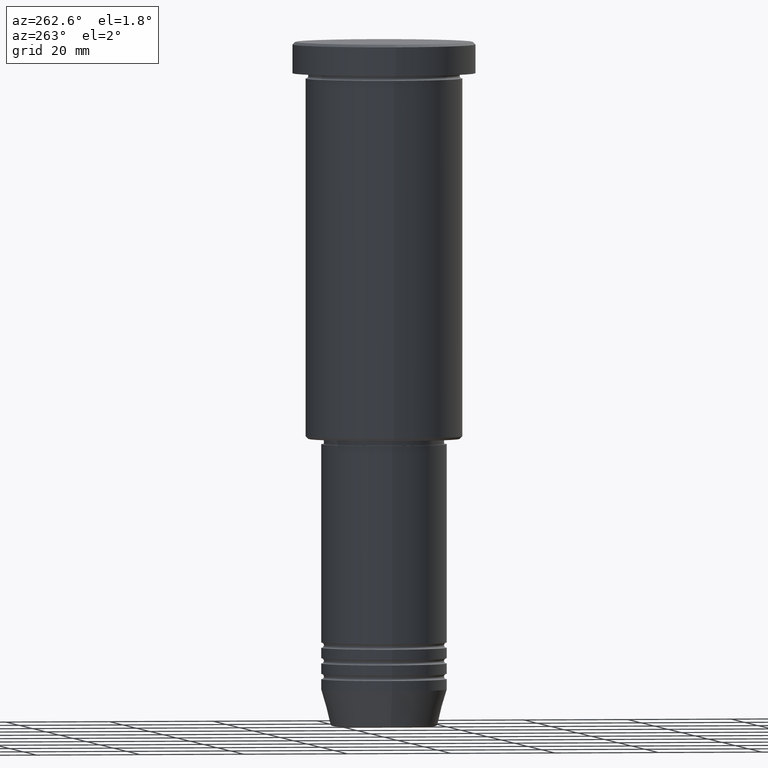
[diagram: clean part render]
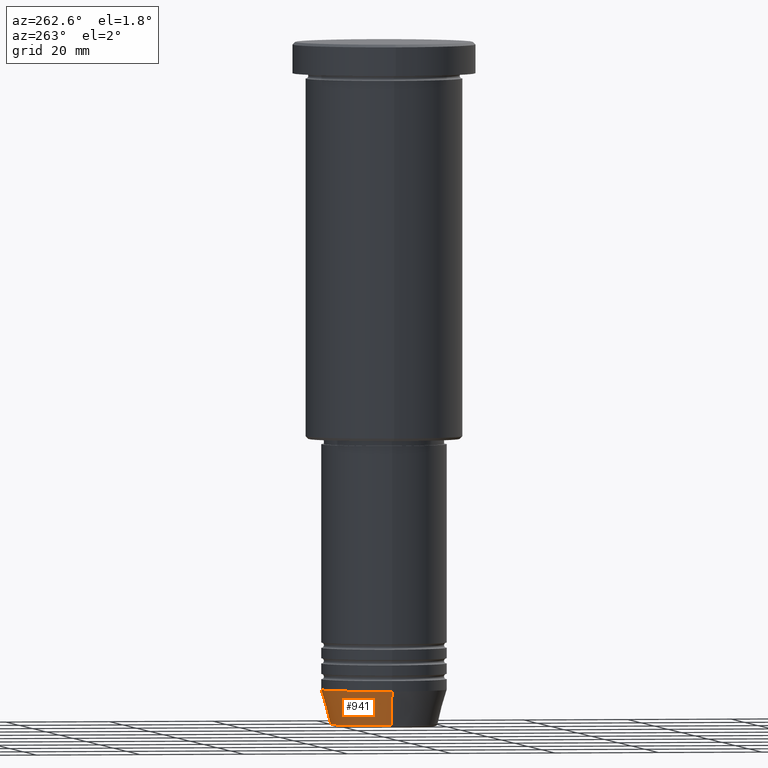
[diagram: same view with one face highlighted and labeled with its STEP entity id]
A machine part, auxiliary view. The second image highlights one B-rep face of the part: STEP entity #941.
In plain terms, the highlighted conical surface has half-angle 15 deg.
Its self-contained STEP definition (entity closure, byte-faithful):
#2 = VERTEX_POINT ( 'NONE', #554 ) ;
#3 = FACE_OUTER_BOUND ( 'NONE', #213, .T. ) ;
#49 = DIRECTION ( 'NONE',  ( -0.2588190451025213501, 3.169619151431772337E-17, 0.9659258262890680902 ) ) ;
#50 = VECTOR ( 'NONE', #189, 1000.000000000000000 ) ;
#54 = CARTESIAN_POINT ( 'NONE',  ( -12.00000000000000000, 1.469576158976823947E-15, -124.0000000000000000 ) ) ;
#63 = AXIS2_PLACEMENT_3D ( 'NONE', #1066, #457, #533 ) ;
#189 = DIRECTION ( 'NONE',  ( 0.2588190451025213501, 0.000000000000000000, 0.9659258262890680902 ) ) ;
#203 = VECTOR ( 'NONE', #49, 1000.000000000000000 ) ;
#213 = EDGE_LOOP ( 'NONE', ( #580, #948, #1006, #374 ) ) ;
#267 = DIRECTION ( 'NONE',  ( -0.000000000000000000, -0.000000000000000000, 1.000000000000000000 ) ) ;
#300 = DIRECTION ( 'NONE',  ( -0.000000000000000000, -0.000000000000000000, 1.000000000000000000 ) ) ;
#327 = LINE ( 'NONE', #802, #50 ) ;
#366 = CARTESIAN_POINT ( 'NONE',  ( 0.000000000000000000, 0.000000000000000000, -124.0000000000000000 ) ) ;
#374 = ORIENTED_EDGE ( 'NONE', *, *, #414, .F. ) ;
#414 = EDGE_CURVE ( 'NONE', #2, #1129, #327, .T. ) ;
#457 = DIRECTION ( 'NONE',  ( -0.000000000000000000, -0.000000000000000000, 1.000000000000000000 ) ) ;
#507 = CONICAL_SURFACE ( 'NONE', #694, 12.00000000000000000, 0.2617993877991500740 ) ;
#520 = LINE ( 'NONE', #54, #203 ) ;
#533 = DIRECTION ( 'NONE',  ( 1.000000000000000000, 0.000000000000000000, 0.000000000000000000 ) ) ;
#554 = CARTESIAN_POINT ( 'NONE',  ( 10.22365507213718949, 0.000000000000000000, -130.6294095225512422 ) ) ;
#574 = EDGE_CURVE ( 'NONE', #1129, #1057, #731, .T. ) ;
#580 = ORIENTED_EDGE ( 'NONE', *, *, #897, .T. ) ;
#584 = CIRCLE ( 'NONE', #63, 10.22365507213718949 ) ;
#656 = CARTESIAN_POINT ( 'NONE',  ( -10.22365507213718949, 1.360806402472382744E-15, -130.6294095225512422 ) ) ;
#693 = EDGE_CURVE ( 'NONE', #987, #1057, #520, .T. ) ;
#694 = AXIS2_PLACEMENT_3D ( 'NONE', #366, #267, #985 ) ;
#731 = CIRCLE ( 'NONE', #887, 12.00000000000000000 ) ;
#769 = DIRECTION ( 'NONE',  ( 1.000000000000000000, 0.000000000000000000, 0.000000000000000000 ) ) ;
#802 = CARTESIAN_POINT ( 'NONE',  ( 12.00000000000000000, 0.000000000000000000, -124.0000000000000000 ) ) ;
#887 = AXIS2_PLACEMENT_3D ( 'NONE', #1116, #300, #769 ) ;
#897 = EDGE_CURVE ( 'NONE', #2, #987, #584, .T. ) ;
#918 = CARTESIAN_POINT ( 'NONE',  ( -12.00000000000000000, 1.469576158976823947E-15, -124.0000000000000000 ) ) ;
#941 = ADVANCED_FACE ( 'NONE', ( #3 ), #507, .T. ) ;
#948 = ORIENTED_EDGE ( 'NONE', *, *, #693, .T. ) ;
#955 = CARTESIAN_POINT ( 'NONE',  ( 12.00000000000000000, 0.000000000000000000, -124.0000000000000000 ) ) ;
#985 = DIRECTION ( 'NONE',  ( 1.000000000000000000, 0.000000000000000000, 0.000000000000000000 ) ) ;
#987 = VERTEX_POINT ( 'NONE', #656 ) ;
#1006 = ORIENTED_EDGE ( 'NONE', *, *, #574, .F. ) ;
#1057 = VERTEX_POINT ( 'NONE', #918 ) ;
#1066 = CARTESIAN_POINT ( 'NONE',  ( 0.000000000000000000, 0.000000000000000000, -130.6294095225512422 ) ) ;
#1116 = CARTESIAN_POINT ( 'NONE',  ( 0.000000000000000000, 0.000000000000000000, -124.0000000000000000 ) ) ;
#1129 = VERTEX_POINT ( 'NONE', #955 ) ;